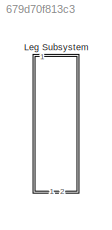
MODEL slx_679d70f813c3
KIND library
CONFIG AbsTol = auto
CONFIG EnableMultiTasking = off
CONFIG FixedStep = auto
CONFIG MaxStep = auto
CONFIG MinStep = auto
CONFIG RelTol = 1e-3
CONFIG SampleTimeConstraint = Unconstrained
CONFIG Solver = VariableStepAuto
CONFIG SolverName = VariableStepAuto
CONFIG StartTime = 0.0
CONFIG StopTime = 10.0
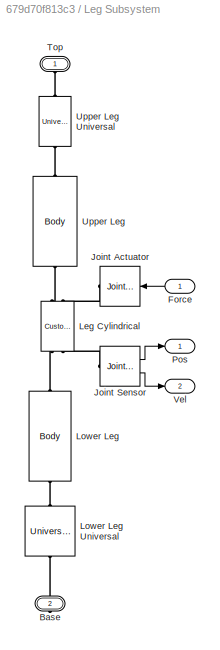
BLOCK [SubSystem] Leg Subsystem
  Ports = [1, 2, 0, 0, 0, 1, 1]
  RequestExecContextInheritance = off
BLOCK [PMIOPort] Leg Subsystem/Base
  Port = 2
  Side = Right
BLOCK [Inport] Leg Subsystem/Force
  Description = Applies a force (N) to the prismatic axis
  IconDisplay = Port number
BLOCK [Reference] Leg Subsystem/Joint Actuator  REF=mblibv1/Sensors & 
Actuators/Joint Actuator
  Ports = [1, 0, 0, 0, 0, 0, 1]
  SourceBlock = mblibv1/Sensors & \nActuators/Joint Actuator
  SourceProductBaseCode = MS
  SourceProductName = Simscape Multibody
  SourceType = Joint Actuator
BLOCK [Reference] Leg Subsystem/Joint Sensor  REF=mblibv1/Sensors & 
Actuators/Joint Sensor
  Ports = [0, 2, 0, 0, 0, 1]
  SourceBlock = mblibv1/Sensors & \nActuators/Joint Sensor
  SourceProductBaseCode = MS
  SourceProductName = Simscape Multibody
  SourceType = Joint Sensor
BLOCK [Reference] Leg Subsystem/Leg Cylindrical  REF=mblibv1/Joints/Custom Joint
  Ports = [0, 0, 0, 0, 0, 2, 2]
  SourceBlock = mblibv1/Joints/Custom Joint
  SourceProductBaseCode = MS
  SourceProductName = Simscape Multibody
  SourceType = Custom Joint
BLOCK [Reference] Leg Subsystem/Lower Leg  REF=mblibv1/Bodies/Body
  Ports = [0, 0, 0, 0, 0, 1, 1]
  SourceBlock = mblibv1/Bodies/Body
  SourceProductBaseCode = MS
  SourceProductName = Simscape Multibody
  SourceType = Body
BLOCK [Reference] Leg Subsystem/Lower Leg Universal  REF=mblibv1/Joints/Universal
  Ports = [0, 0, 0, 0, 0, 1, 1]
  SourceBlock = mblibv1/Joints/Universal
  SourceProductBaseCode = MS
  SourceProductName = Simscape Multibody
  SourceType = Universal
BLOCK [Outport] Leg Subsystem/Pos
  Description = Senses position and velocity of the prismatic axis
  IconDisplay = Port number
BLOCK [PMIOPort] Leg Subsystem/Top
  Side = Left
BLOCK [Reference] Leg Subsystem/Upper Leg  REF=mblibv1/Bodies/Body
  Ports = [0, 0, 0, 0, 0, 1, 1]
  SourceBlock = mblibv1/Bodies/Body
  SourceProductBaseCode = MS
  SourceProductName = Simscape Multibody
  SourceType = Body
BLOCK [Reference] Leg Subsystem/Upper Leg Universal  REF=mblibv1/Joints/Universal
  Ports = [0, 0, 0, 0, 0, 1, 1]
  SourceBlock = mblibv1/Joints/Universal
  SourceProductBaseCode = MS
  SourceProductName = Simscape Multibody
  SourceType = Universal
BLOCK [Outport] Leg Subsystem/Vel
  Description = Senses position and velocity of the prismatic axis
  IconDisplay = Port number
  Port = 2
LINE Leg Subsystem/Force:1 -> Leg Subsystem/Joint Actuator:1
LINE Leg Subsystem/Joint Sensor:1 -> Leg Subsystem/Pos:1
LINE Leg Subsystem/Joint Sensor:2 -> Leg Subsystem/Vel:1
PLINE Leg Subsystem/Base:RConn1 -- Leg Subsystem/Lower Leg Universal:LConn1
PLINE Leg Subsystem/Joint Actuator:RConn1 -- Leg Subsystem/Leg Cylindrical:RConn2
PLINE Leg Subsystem/Joint Sensor:LConn1 -- Leg Subsystem/Leg Cylindrical:LConn2
PLINE Leg Subsystem/Leg Cylindrical:LConn1 -- Leg Subsystem/Lower Leg:RConn1
PLINE Leg Subsystem/Leg Cylindrical:RConn1 -- Leg Subsystem/Upper Leg:LConn1
PLINE Leg Subsystem/Lower Leg Universal:RConn1 -- Leg Subsystem/Lower Leg:LConn1
PLINE Leg Subsystem/Top:RConn1 -- Leg Subsystem/Upper Leg Universal:RConn1
PLINE Leg Subsystem/Upper Leg Universal:LConn1 -- Leg Subsystem/Upper Leg:RConn1
